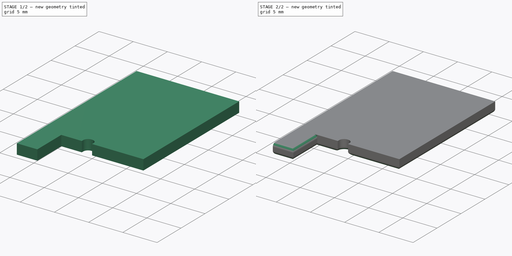
[diagram: build sequence overview — one tinted view per stage of 2, left to right]
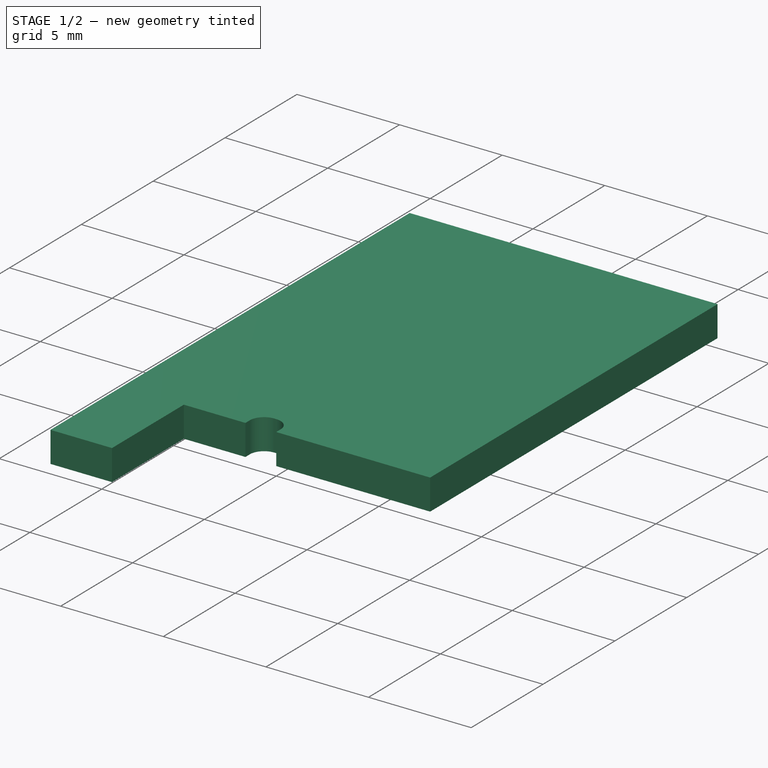
[diagram: stage 1 of 2 — iso view after this stage's code; geometry added in this stage tinted green]
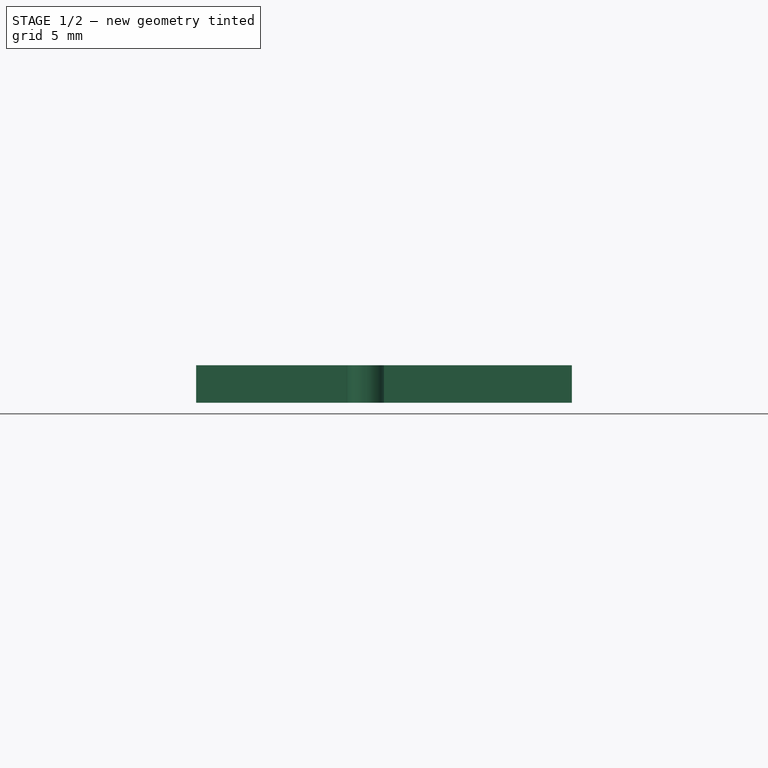
[diagram: stage 1 of 2 — front view after this stage's code; geometry added in this stage tinted green]
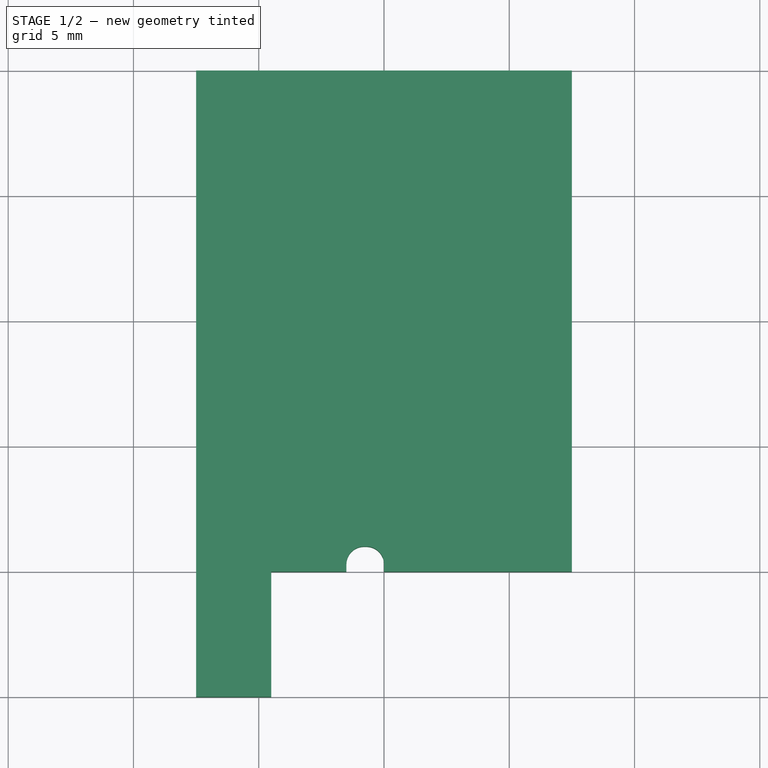
[diagram: stage 1 of 2 — top view after this stage's code; geometry added in this stage tinted green]
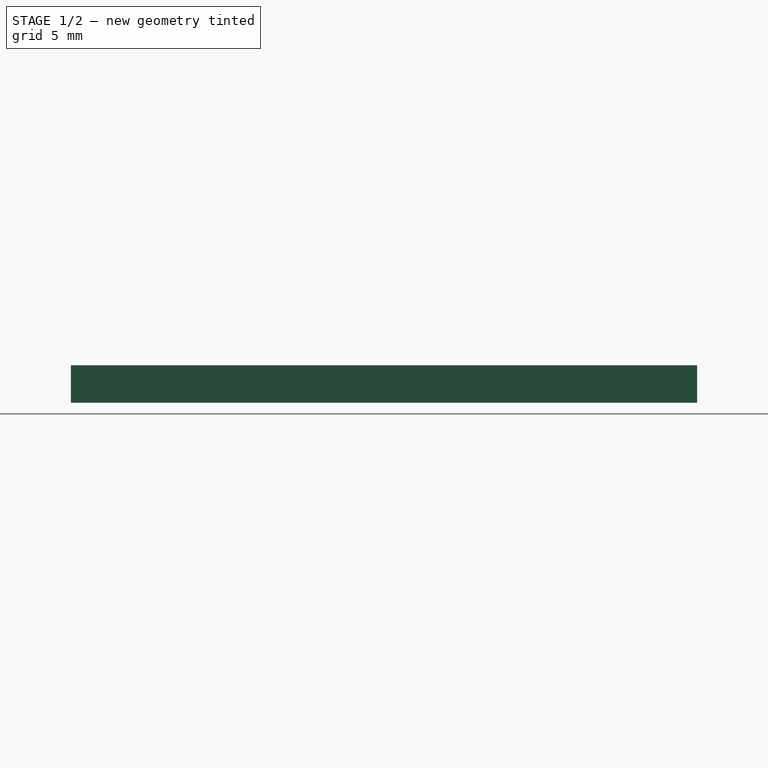
[diagram: stage 1 of 2 — right view after this stage's code; geometry added in this stage tinted green]
FCSTD DOCUMENT  (FreeCAD 1.1R39841 (Git))
Label: applicator
License: All rights reserved
LicenseURL: http://en.wikipedia.org/wiki/All_rights_reserved
objects: PartDesign::Fillet×3, App::Point×1, Sketcher::SketchObject×1, PartDesign::Pad×1, PartDesign::Body×1
note: 15 computed .brp shape members not serialized (recipe doc carries the construction recipe); baked Part::Feature solids carry a one-line shape summary decoded from their .brp

FEATURE [App::Point] Origin001
  Role = Origin
FEATURE [Sketcher::SketchObject] Sketch
  ArcFitTolerance = 1e-06
  AttachmentSupport = -> [XY_Plane]
  ExternalTypes = [0]
  FullyConstrained = true
  MakeInternals = false
  MapMode = 5
  sketch-geometry (10):
    g0: LineSegment StartX=-7.5 StartY=25 StartZ=0 EndX=7.5 EndY=25 EndZ=0
    g1: LineSegment StartX=7.5 StartY=25 StartZ=0 EndX=7.5 EndY=5 EndZ=0
    g2: LineSegment StartX=7.5 StartY=5 StartZ=0 EndX=0 EndY=5 EndZ=0
    g3: LineSegment StartX=0 StartY=5 StartZ=0 EndX=0 EndY=6 EndZ=0
    g4: LineSegment StartX=0 StartY=6 StartZ=0 EndX=-1.5 EndY=6 EndZ=0
    g5: LineSegment StartX=-4.5 StartY=0 StartZ=0 EndX=-7.5 EndY=0 EndZ=0
    g6: LineSegment StartX=-7.5 StartY=0 StartZ=0 EndX=-7.5 EndY=25 EndZ=0
    g7: LineSegment StartX=-1.5 StartY=6 StartZ=0 EndX=-1.5 EndY=5 EndZ=0
    g8: LineSegment StartX=-1.5 StartY=5 StartZ=0 EndX=-4.5 EndY=5 EndZ=0
    g9: LineSegment StartX=-4.5 StartY=5 StartZ=0 EndX=-4.5 EndY=0 EndZ=0
  constraints (29):
    c: Coincident(g0,g1)
    c: Vertical(g1)
    c: Coincident(g1,g2)
    c: Horizontal(g2)
    c: Coincident(g2,g3)
    c: Vertical(g3)
    c: Coincident(g3,g4)
    c: Horizontal(g4)
    c: PointOnObject(g5,g-1)
    c: PointOnObject(g5,g-1)
    c: Coincident(g5,g6)
    c: Coincident(g6,g0)
    c: Vertical(g6)
    c: Symmetric(g0,g0,g-2)
    c: DistanceX(g5,g5) = 3
    c: PointOnObject(g2,g-2)
    c: DistanceX(g4,g4) = 1.5
    c: Coincident(g4,g7)
    c: Vertical(g7)
    c: Coincident(g7,g8)
    c: Coincident(g8,g9)
    c: Coincident(g9,g5)
    c: Vertical(g9)
    c: Horizontal(g8)
    c: DistanceX(g8,g8) = 3
    c: DistanceY(g6,g6) = 25
    c: DistanceY(g1,g1) = 20
    c: DistanceY(g9,g9) = 5
    c: DistanceY(g3,g3) = 1
FEATURE [PartDesign::Pad] Pad
  Direction = (0,0,1)
  Length = 1.5
  Length2 = 10
  Profile = -> Sketch
  ReferenceAxis = -> Sketch [N_Axis]
  Suppressed = false
  Type = 0
FEATURE [PartDesign::Fillet] Fillet
  Base = -> Pad [Edge14,Edge11]
  BaseFeature = -> Pad
  Radius = 0.7
  SupportTransform = false
  Suppressed = false
  UseAllEdges = false
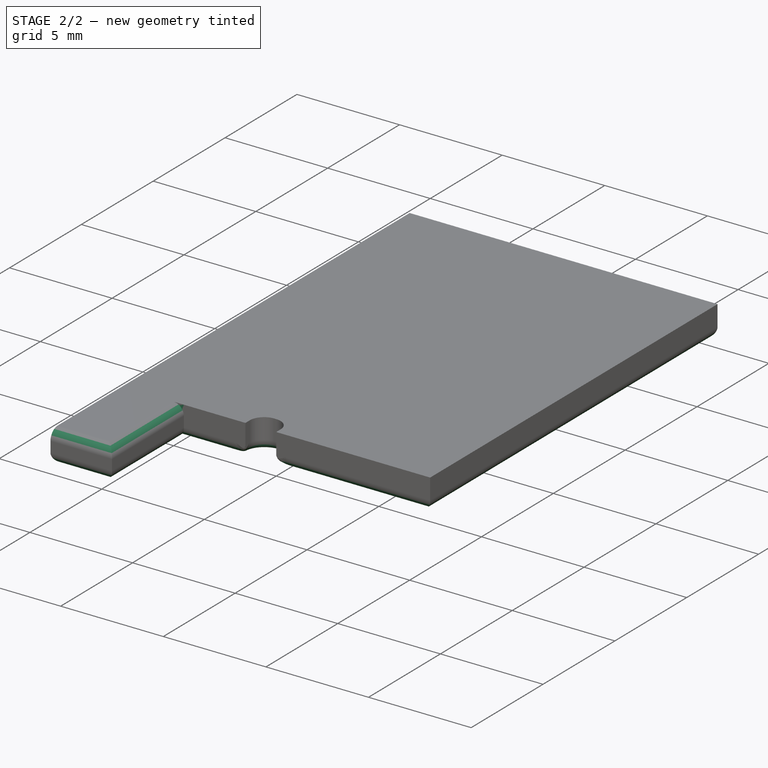
[diagram: stage 2 of 2 — iso view after this stage's code; geometry added in this stage tinted green]
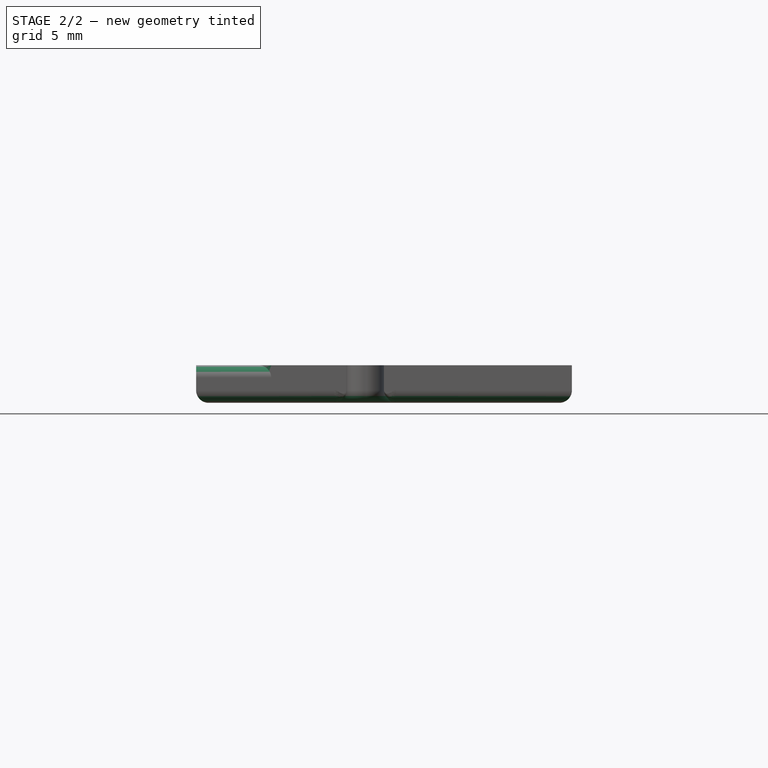
[diagram: stage 2 of 2 — front view after this stage's code; geometry added in this stage tinted green]
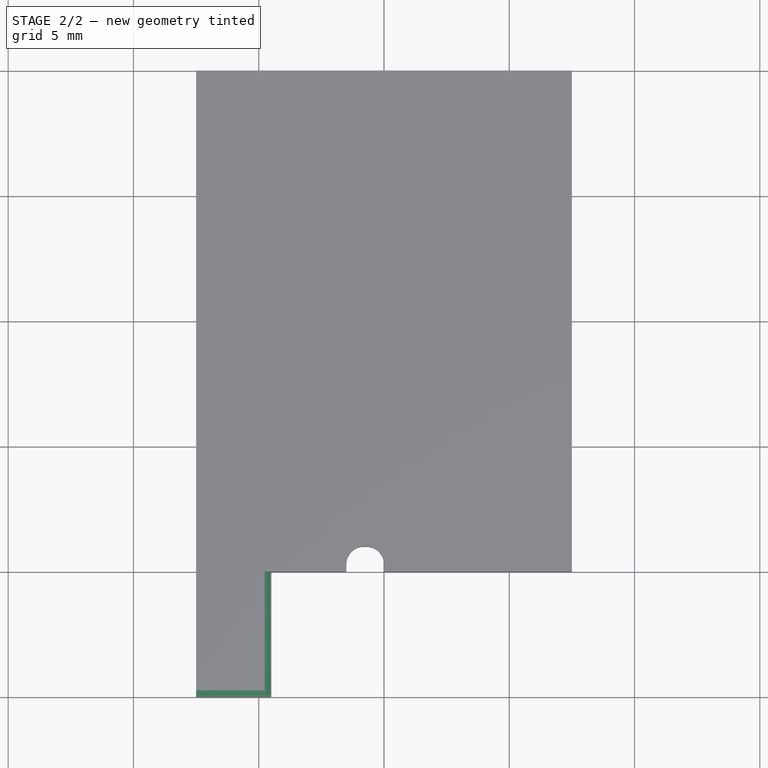
[diagram: stage 2 of 2 — top view after this stage's code; geometry added in this stage tinted green]
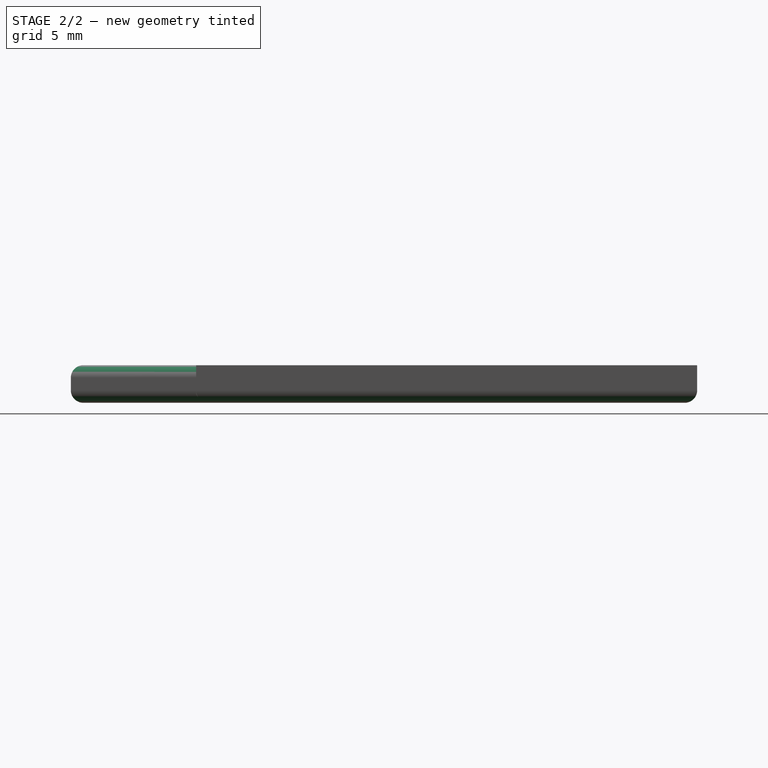
[diagram: stage 2 of 2 — right view after this stage's code; geometry added in this stage tinted green]
FEATURE [PartDesign::Fillet] Fillet001
  Base = -> Fillet [Face2]
  BaseFeature = -> Fillet
  Radius = 0.5
  SupportTransform = false
  Suppressed = false
  UseAllEdges = false
FEATURE [PartDesign::Fillet] Fillet002
  Base = -> Fillet001 [Edge20,Edge19]
  BaseFeature = -> Fillet001
  Radius = 0.5
  SupportTransform = false
  Suppressed = false
  UseAllEdges = false
FEATURE [PartDesign::Body] Body
  AllowCompound = false
  Group = -> [Sketch,Pad,Fillet,Fillet001,Fillet002]
  Origin = -> Origin
  Tip = -> Fillet002
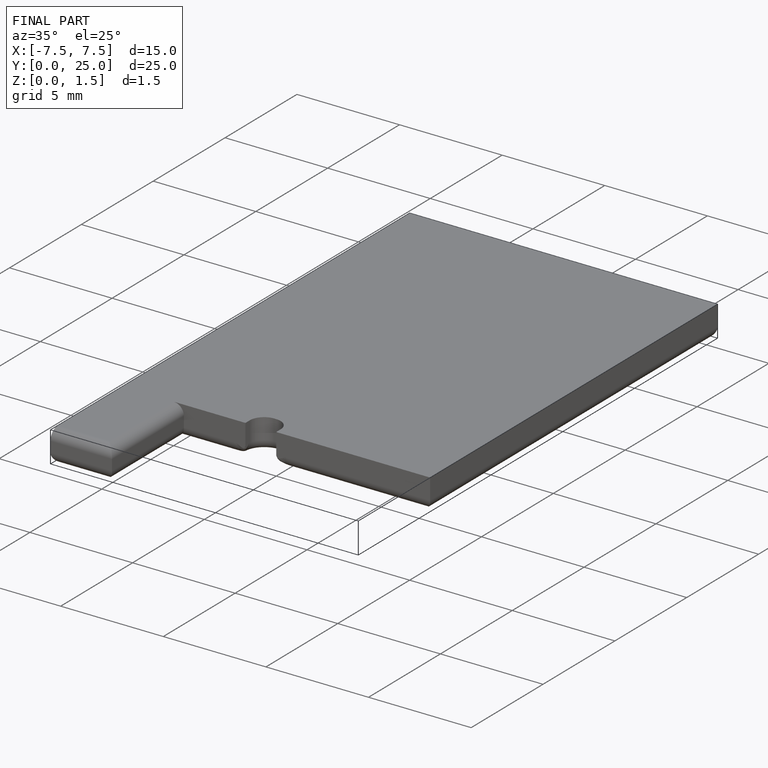
[diagram: finished part — iso view with bounding-box wireframe]
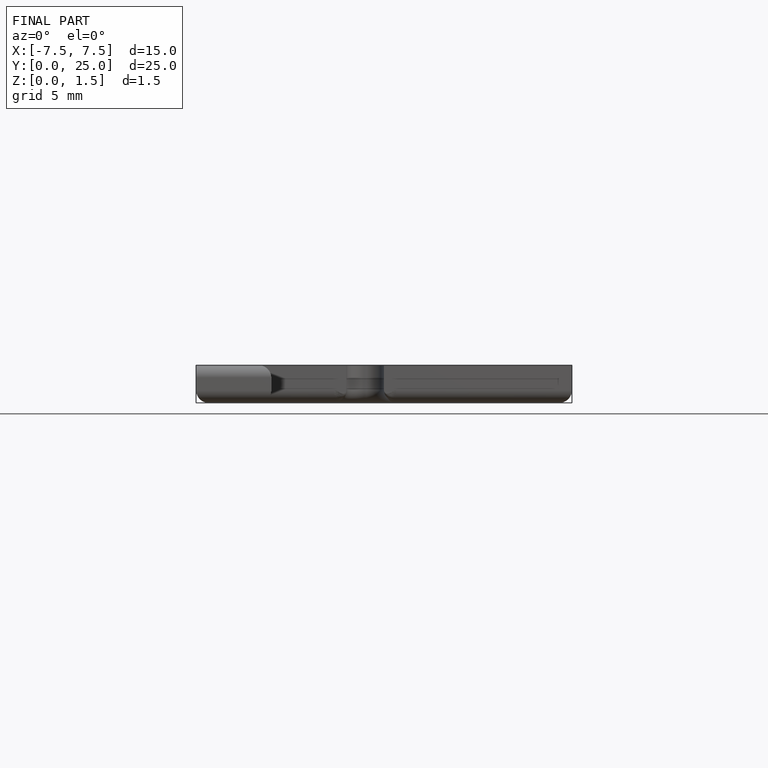
[diagram: finished part — front view with bounding-box wireframe]
